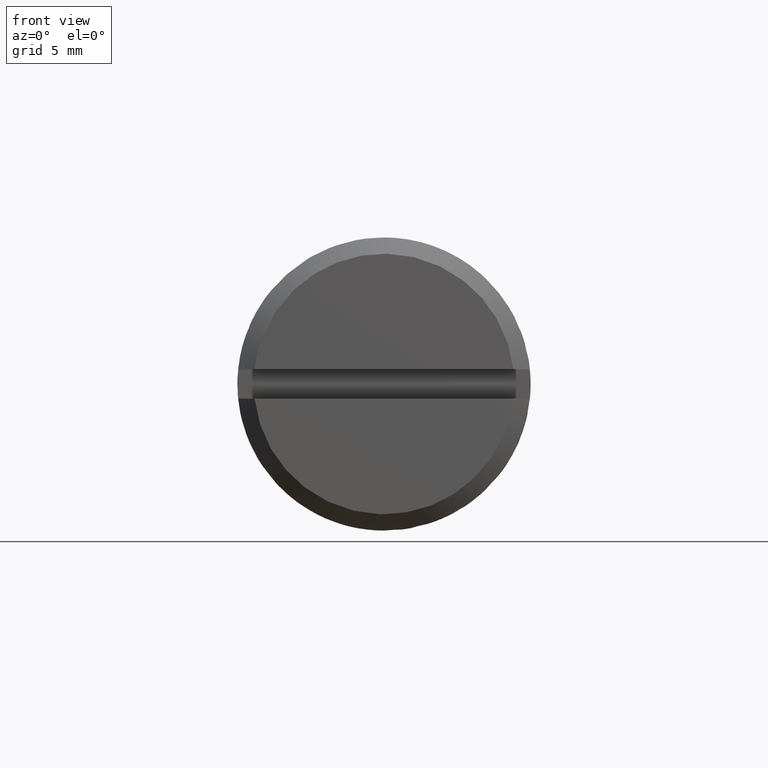
[diagram: clean part render]
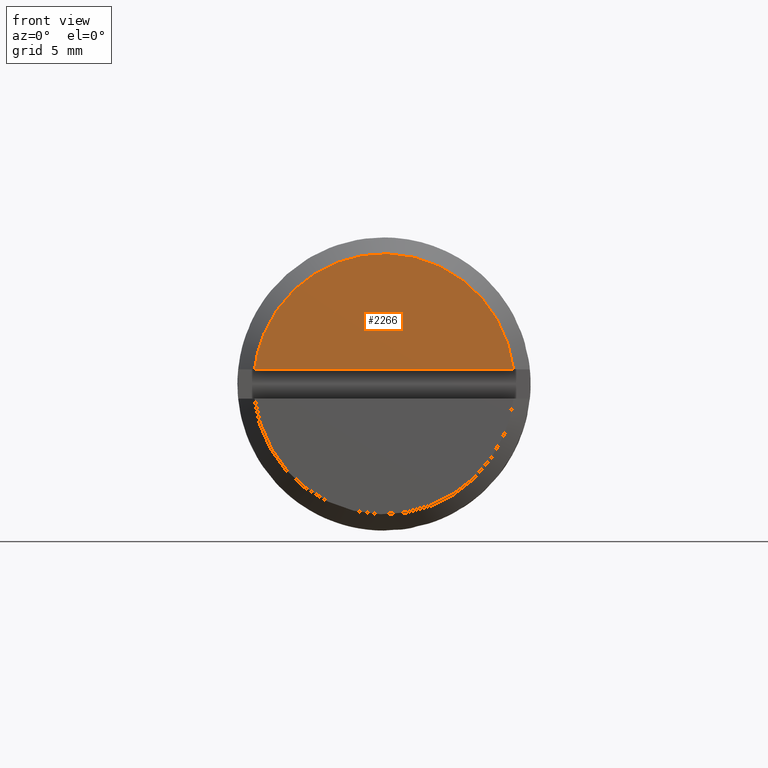
[diagram: same view with one face highlighted and labeled with its STEP entity id]
A machine part, front view. The second image highlights one B-rep face of the part: STEP entity #2266.
In plain terms, the highlighted face is a freeform B-spline surface patch.
Its self-contained STEP definition (entity closure, byte-faithful):
#2021=CARTESIAN_POINT('',(-11.999900000000000,-7.949213797602840,0.900000000000000));
#2022=VERTEX_POINT('',#2021);
#2030=CARTESIAN_POINT('',(-11.999900000000000,7.949213797602840,0.900000000000000));
#2031=VERTEX_POINT('',#2030);
#2032=CARTESIAN_POINT('',(-11.999900000000000,7.949213797602840,0.900000000000000));
#2033=CARTESIAN_POINT('',(-11.999900000000000,-7.949213797602840,0.900000000000000));
#2034=QUASI_UNIFORM_CURVE('',1,(#2032,#2033),.UNSPECIFIED.,.F.,.U.);
#2035=EDGE_CURVE('',#2031,#2022,#2034,.T.);
#2199=CARTESIAN_POINT('',(-11.999900000000000,-7.949213797602880,0.900000000000001));
#2200=CARTESIAN_POINT('',(-11.999900000000000,-7.145360716946407,8.0));
#2201=CARTESIAN_POINT('',(-11.999900000000000,0.0,8.0));
#2202=CARTESIAN_POINT('',(-11.999900000000000,7.145360716946407,8.0));
#2203=CARTESIAN_POINT('',(-11.999900000000000,7.949213797602880,0.900000000000003));
#2211=(BOUNDED_CURVE()B_SPLINE_CURVE(2,(#2199,#2200,#2201,#2202,#2203),.UNSPECIFIED.,.F.,.U.)B_SPLINE_CURVE_WITH_KNOTS((3,2,3),(0.0,0.500000000000000,1.0),.UNSPECIFIED.)CURVE()GEOMETRIC_REPRESENTATION_ITEM()RATIONAL_B_SPLINE_CURVE((1.0,0.745821694508815,1.0,0.745821694508815,1.0))REPRESENTATION_ITEM(''));
#2212=EDGE_CURVE('',#2022,#2031,#2211,.T.);
#2257=CARTESIAN_POINT('',(-11.999900000000000,-8.743340523655251,0.545354947111458));
#2258=CARTESIAN_POINT('',(-11.999900000000000,8.743340665798272,0.545354947111458));
#2259=CARTESIAN_POINT('',(-11.999900000000000,-8.743340523655251,8.354645179846418));
#2260=CARTESIAN_POINT('',(-11.999900000000000,8.743340665798272,8.354645179846418));
#2261=B_SPLINE_SURFACE_WITH_KNOTS('',1,1,((#2257,#2259),(#2258,#2260)),.UNSPECIFIED.,.F.,.F.,.U.,(2,2),(2,2),(0.0,17.486681189453520),(0.0,7.809290232734961),.UNSPECIFIED.);
#2262=ORIENTED_EDGE('',*,*,#2035,.T.);
#2263=ORIENTED_EDGE('',*,*,#2212,.T.);
#2264=EDGE_LOOP('',(#2262,#2263));
#2265=FACE_OUTER_BOUND('',#2264,.T.);
#2266=ADVANCED_FACE('',(#2265),#2261,.F.);